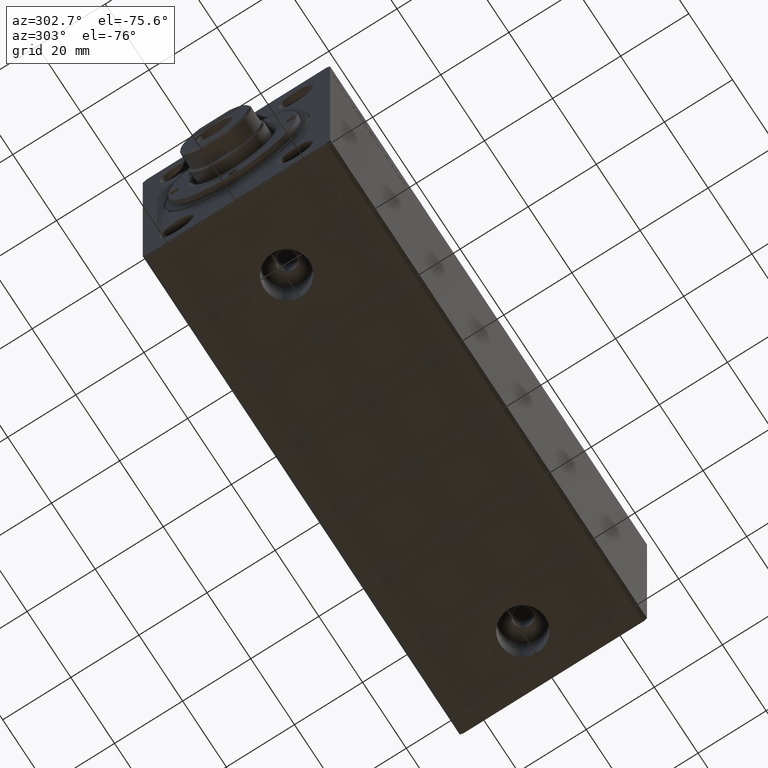
[diagram: clean part render]
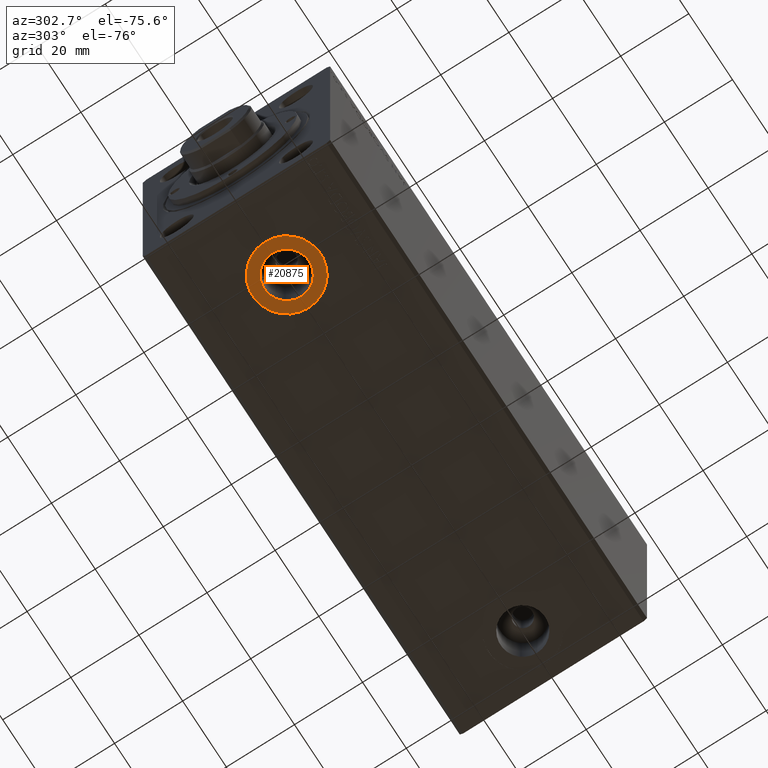
[diagram: same view with one face highlighted and labeled with its STEP entity id]
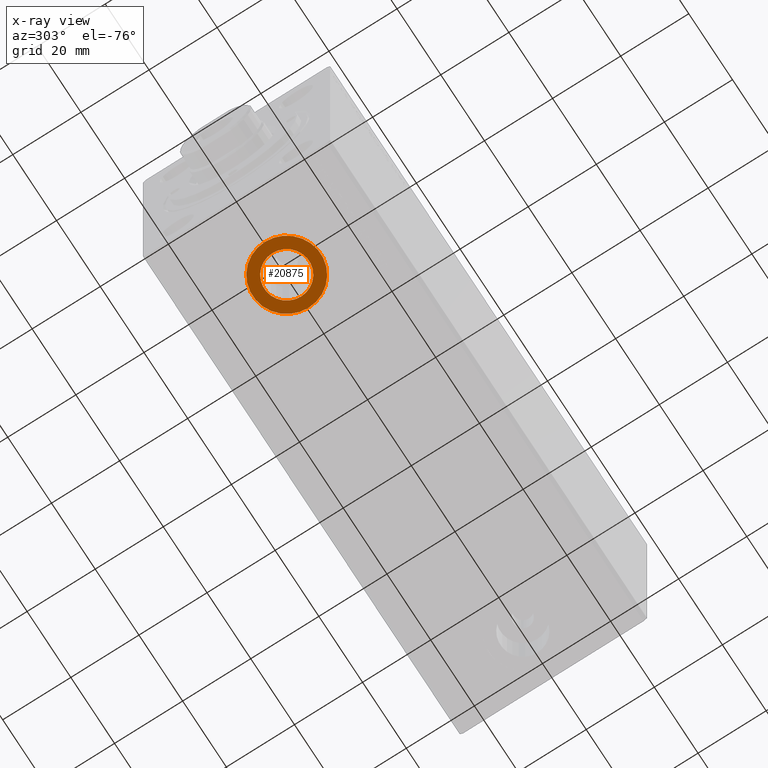
[diagram: x-ray of the same camera — body ghosted, the highlighted face saturated]
A machine part, auxiliary view. The second image highlights one B-rep face of the part: STEP entity #20875.
The next image is the same camera in x-ray: the body ghosted, the highlighted face saturated — about 0% of this face is hidden behind the body in this view.
In plain terms, the highlighted planar face has unit normal (0, 0, -1).
Its self-contained STEP definition (entity closure, byte-faithful):
#1536 = VERTEX_POINT ( 'NONE', #17086 ) ;
#2575 = ORIENTED_EDGE ( 'NONE', *, *, #29543, .F. ) ;
#4240 = FACE_BOUND ( 'NONE', #12029, .T. ) ;
#7015 = ORIENTED_EDGE ( 'NONE', *, *, #7848, .T. ) ;
#7717 = DIRECTION ( 'NONE',  ( -1.000000000000000000, 0.000000000000000000, 0.000000000000000000 ) ) ;
#7806 = PLANE ( 'NONE',  #17471 ) ;
#7848 = EDGE_CURVE ( 'NONE', #32660, #35331, #41376, .T. ) ;
#9874 = DIRECTION ( 'NONE',  ( -1.000000000000000000, 0.000000000000000000, 0.000000000000000000 ) ) ;
#9954 = DIRECTION ( 'NONE',  ( -1.000000000000000000, 0.000000000000000000, 0.000000000000000000 ) ) ;
#10500 = DIRECTION ( 'NONE',  ( 0.000000000000000000, 0.000000000000000000, -1.000000000000000000 ) ) ;
#11896 = CARTESIAN_POINT ( 'NONE',  ( 23.00000000000000000, -3.533115609439951465E-15, -37.39999999999999147 ) ) ;
#12029 = EDGE_LOOP ( 'NONE', ( #2575, #33071 ) ) ;
#13308 = CARTESIAN_POINT ( 'NONE',  ( 23.00000000000000000, -3.533115609439951465E-15, -37.39999999999999147 ) ) ;
#13649 = CARTESIAN_POINT ( 'NONE',  ( 23.00000000000000000, -3.533115609439951465E-15, -37.39999999999999147 ) ) ;
#14062 = FACE_OUTER_BOUND ( 'NONE', #42919, .T. ) ;
#14275 = CARTESIAN_POINT ( 'NONE',  ( 0.000000000000000000, 0.000000000000000000, -37.39999999999999147 ) ) ;
#17086 = CARTESIAN_POINT ( 'NONE',  ( 16.41999999999999815, -3.533115609439951465E-15, -37.39999999999999147 ) ) ;
#17471 = AXIS2_PLACEMENT_3D ( 'NONE', #14275, #10500, #24309 ) ;
#17914 = CIRCLE ( 'NONE', #41449, 10.00000000000000000 ) ;
#18517 = VERTEX_POINT ( 'NONE', #37949 ) ;
#20119 = EDGE_CURVE ( 'NONE', #18517, #1536, #21054, .T. ) ;
#20549 = DIRECTION ( 'NONE',  ( 0.000000000000000000, 0.000000000000000000, -1.000000000000000000 ) ) ;
#20875 = ADVANCED_FACE ( 'NONE', ( #4240, #14062 ), #7806, .T. ) ;
#21054 = CIRCLE ( 'NONE', #27460, 6.580000000000002736 ) ;
#24302 = DIRECTION ( 'NONE',  ( 0.000000000000000000, 0.000000000000000000, -1.000000000000000000 ) ) ;
#24309 = DIRECTION ( 'NONE',  ( -1.000000000000000000, 0.000000000000000000, -0.000000000000000000 ) ) ;
#24352 = ORIENTED_EDGE ( 'NONE', *, *, #27189, .T. ) ;
#24441 = DIRECTION ( 'NONE',  ( 0.000000000000000000, 0.000000000000000000, -1.000000000000000000 ) ) ;
#27189 = EDGE_CURVE ( 'NONE', #35331, #32660, #17914, .T. ) ;
#27435 = DIRECTION ( 'NONE',  ( -1.000000000000000000, 0.000000000000000000, 0.000000000000000000 ) ) ;
#27460 = AXIS2_PLACEMENT_3D ( 'NONE', #13308, #40522, #9954 ) ;
#29543 = EDGE_CURVE ( 'NONE', #1536, #18517, #30818, .T. ) ;
#30818 = CIRCLE ( 'NONE', #38673, 6.580000000000002736 ) ;
#31509 = CARTESIAN_POINT ( 'NONE',  ( 33.00000000000000000, -2.308468810292598801E-15, -37.39999999999999147 ) ) ;
#32660 = VERTEX_POINT ( 'NONE', #39353 ) ;
#33071 = ORIENTED_EDGE ( 'NONE', *, *, #20119, .F. ) ;
#35331 = VERTEX_POINT ( 'NONE', #31509 ) ;
#37949 = CARTESIAN_POINT ( 'NONE',  ( 29.58000000000000185, -2.727298015600992818E-15, -37.39999999999999147 ) ) ;
#38535 = AXIS2_PLACEMENT_3D ( 'NONE', #40624, #24302, #27435 ) ;
#38673 = AXIS2_PLACEMENT_3D ( 'NONE', #11896, #24441, #7717 ) ;
#39353 = CARTESIAN_POINT ( 'NONE',  ( 13.00000000000000000, -3.533115609439951465E-15, -37.39999999999999147 ) ) ;
#40522 = DIRECTION ( 'NONE',  ( 0.000000000000000000, 0.000000000000000000, -1.000000000000000000 ) ) ;
#40624 = CARTESIAN_POINT ( 'NONE',  ( 23.00000000000000000, -3.533115609439951465E-15, -37.39999999999999147 ) ) ;
#41376 = CIRCLE ( 'NONE', #38535, 10.00000000000000000 ) ;
#41449 = AXIS2_PLACEMENT_3D ( 'NONE', #13649, #20549, #9874 ) ;
#42919 = EDGE_LOOP ( 'NONE', ( #7015, #24352 ) ) ;